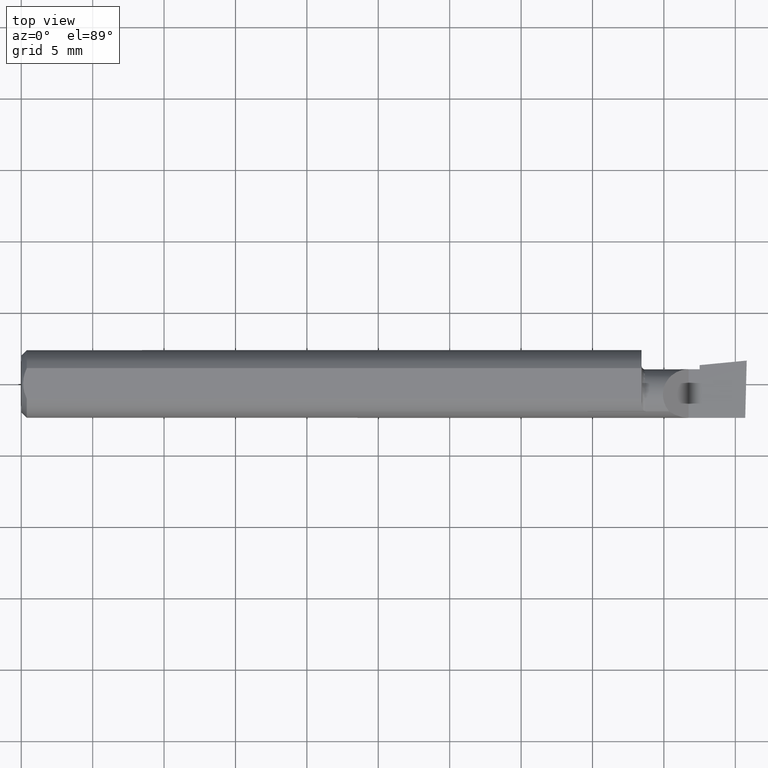
[diagram: clean part render]
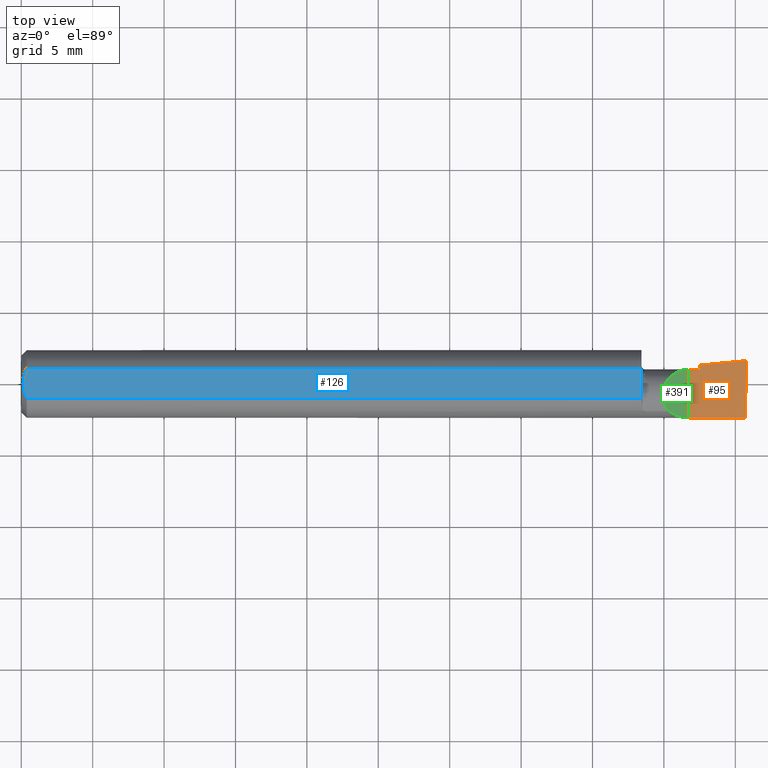
[diagram: same view with three faces highlighted in distinct colors, each labeled with its STEP entity id]
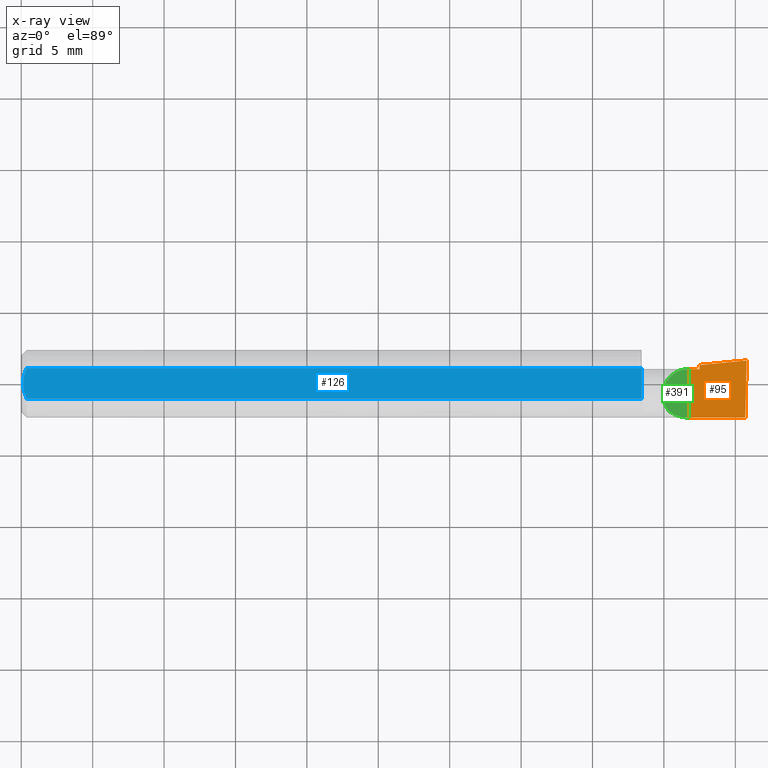
[diagram: x-ray of the same camera — body ghosted, the three highlighted faces saturated]
A machine part, top view with three faces highlighted in distinct colors.
The next image is the same camera in x-ray (body ghosted, the three faces saturated) — at least one of them is partly hidden behind the body in this view.
Their STEP definitions:

[orange] entity #95 — the highlighted planar face has unit normal (-0, 0, -1).
#10 = DIRECTION ( 'NONE',  ( 0.9953961983671787417, 0.09584575252022463354, -5.467869873542577569E-16 ) ) ;
#16 = DIRECTION ( 'NONE',  ( -0.000000000000000000, 1.000000000000000000, -0.000000000000000000 ) ) ;
#23 = VERTEX_POINT ( 'NONE', #432 ) ;
#58 = LINE ( 'NONE', #264, #364 ) ;
#70 = VECTOR ( 'NONE', #290, 39.37007874015748143 ) ;
#71 = VECTOR ( 'NONE', #16, 39.37007874015748143 ) ;
#86 = CARTESIAN_POINT ( 'NONE',  ( 1.995862624392068074, -0.09360000000000009979, -6.605666309584466665E-17 ) ) ;
#95 = ADVANCED_FACE ( 'NONE', ( #212 ), #406, .F. ) ;
#115 = ORIENTED_EDGE ( 'NONE', *, *, #279, .F. ) ;
#125 = CARTESIAN_POINT ( 'NONE',  ( 1.870000000000000107, -0.2500000000000000555, 3.114870918614344945E-18 ) ) ;
#130 = VERTEX_POINT ( 'NONE', #501 ) ;
#157 = EDGE_CURVE ( 'NONE', #23, #261, #493, .T. ) ;
#159 = LINE ( 'NONE', #258, #71 ) ;
#161 = ORIENTED_EDGE ( 'NONE', *, *, #167, .F. ) ;
#167 = EDGE_CURVE ( 'NONE', #416, #130, #259, .T. ) ;
#178 = CARTESIAN_POINT ( 'NONE',  ( 5.659797890829555466E-31, -0.09359999999999998876, 1.030335658007946046E-15 ) ) ;
#180 = ORIENTED_EDGE ( 'NONE', *, *, #516, .F. ) ;
#199 = VECTOR ( 'NONE', #426, 39.37007874015748143 ) ;
#212 = FACE_OUTER_BOUND ( 'NONE', #441, .T. ) ;
#238 = DIRECTION ( 'NONE',  ( -4.268512490100411279E-18, 1.000000000000000000, 2.344761903626518103E-33 ) ) ;
#254 = VECTOR ( 'NONE', #238, 39.37007874015748143 ) ;
#257 = CARTESIAN_POINT ( 'NONE',  ( 1.991772787678609324, -0.2497845628634190740, -6.377686106282058433E-17 ) ) ;
#258 = CARTESIAN_POINT ( 'NONE',  ( 1.840000000000000080, -0.2500000000000000555, 1.959434878635762025E-17 ) ) ;
#259 = LINE ( 'NONE', #125, #254 ) ;
#261 = VERTEX_POINT ( 'NONE', #86 ) ;
#263 = VERTEX_POINT ( 'NONE', #369 ) ;
#264 = CARTESIAN_POINT ( 'NONE',  ( 1.013387277386880170, -0.03060000000000022771, 4.736658843696218569E-16 ) ) ;
#279 = EDGE_CURVE ( 'NONE', #261, #555, #462, .T. ) ;
#290 = DIRECTION ( 'NONE',  ( 1.000000000000000000, 4.268512490100411279E-18, 0.000000000000000000 ) ) ;
#296 = ORIENTED_EDGE ( 'NONE', *, *, #348, .F. ) ;
#302 = DIRECTION ( 'NONE',  ( -1.000000000000000000, 0.000000000000000000, 5.493159289247764363E-16 ) ) ;
#338 = CARTESIAN_POINT ( 'NONE',  ( -3.030643867965641156E-19, 0.04039999999999997066, 1.030335658007946046E-15 ) ) ;
#340 = ORIENTED_EDGE ( 'NONE', *, *, #157, .F. ) ;
#341 = LINE ( 'NONE', #338, #70 ) ;
#342 = AXIS2_PLACEMENT_3D ( 'NONE', #593, #410, #302 ) ;
#348 = EDGE_CURVE ( 'NONE', #263, #416, #341, .T. ) ;
#364 = VECTOR ( 'NONE', #10, 39.37007874015748143 ) ;
#369 = CARTESIAN_POINT ( 'NONE',  ( 1.840000000000000080, 0.04039999999999989433, 1.959434878635762025E-17 ) ) ;
#406 = PLANE ( 'NONE',  #342 ) ;
#410 = DIRECTION ( 'NONE',  ( -5.493159289247764363E-16, 0.000000000000000000, -1.000000000000000000 ) ) ;
#416 = VERTEX_POINT ( 'NONE', #584 ) ;
#426 = DIRECTION ( 'NONE',  ( -1.000000000000000000, -0.000000000000000000, -0.000000000000000000 ) ) ;
#432 = CARTESIAN_POINT ( 'NONE',  ( 2.000000000000004441, 0.06440000000001339098, 4.265097680108330883E-14 ) ) ;
#441 = EDGE_LOOP ( 'NONE', ( #340, #180, #161, #296, #605, #115 ) ) ;
#449 = CARTESIAN_POINT ( 'NONE',  ( 1.840000000000000080, -0.09360000000000005815, 1.959434878635762025E-17 ) ) ;
#453 = DIRECTION ( 'NONE',  ( -0.02617694830786939167, -0.9996573249755573709, 1.459184416195897376E-17 ) ) ;
#462 = LINE ( 'NONE', #178, #199 ) ;
#493 = LINE ( 'NONE', #257, #590 ) ;
#501 = CARTESIAN_POINT ( 'NONE',  ( 1.870000000000000107, 0.05188242373432196131, 1.032980022604299511E-15 ) ) ;
#516 = EDGE_CURVE ( 'NONE', #130, #23, #58, .T. ) ;
#545 = EDGE_CURVE ( 'NONE', #555, #263, #159, .T. ) ;
#555 = VERTEX_POINT ( 'NONE', #449 ) ;
#584 = CARTESIAN_POINT ( 'NONE',  ( 1.870000000000000107, 0.04039999999999999841, 1.030335658007946243E-15 ) ) ;
#590 = VECTOR ( 'NONE', #453, 39.37007874015748143 ) ;
#593 = CARTESIAN_POINT ( 'NONE',  ( 2.000000000000000000, -0.2500000000000000555, -6.829619984160658046E-17 ) ) ;
#605 = ORIENTED_EDGE ( 'NONE', *, *, #545, .F. ) ;

[blue] entity #126 — the highlighted planar face has unit normal (0, -0, -1).
#7 = B_SPLINE_CURVE_WITH_KNOTS ( 'NONE', 3,
 ( #521, #332, #326, #80, #556, #554 ),
 .UNSPECIFIED., .F., .F.,
 ( 4, 2, 4 ),
 ( 0.005785415439423114564, 0.006333348270144337384, 0.006881281100865561072 ),
 .UNSPECIFIED. ) ;
#24 = CARTESIAN_POINT ( 'NONE',  ( 1.709999999999999964, 0.04209513035969836975, 0.08360000000000000764 ) ) ;
#49 = CARTESIAN_POINT ( 'NONE',  ( 0.005000000000000237761, 1.025183009042025117E-17, 0.08360000000000000764 ) ) ;
#53 = VECTOR ( 'NONE', #121, 39.37007874015748143 ) ;
#62 = ORIENTED_EDGE ( 'NONE', *, *, #414, .F. ) ;
#80 = CARTESIAN_POINT ( 'NONE',  ( 0.005975039161239527503, -0.01453776427033146371, 0.08359999999999996600 ) ) ;
#109 = CARTESIAN_POINT ( 'NONE',  ( 2.000000000000000000, 0.1436000000000000332, 0.08359999999999999376 ) ) ;
#116 = PLANE ( 'NONE',  #169 ) ;
#121 = DIRECTION ( 'NONE',  ( 1.000000000000000000, 0.000000000000000000, 0.000000000000000000 ) ) ;
#126 = ADVANCED_FACE ( 'NONE', ( #205 ), #116, .F. ) ;
#135 = VERTEX_POINT ( 'NONE', #24 ) ;
#148 = B_SPLINE_CURVE_WITH_KNOTS ( 'NONE', 3,
 ( #49, #250, #444, #297, #200, #396 ),
 .UNSPECIFIED., .F., .F.,
 ( 4, 2, 4 ),
 ( 0.006881281100865561072, 0.007427683811376461706, 0.007974086521887361473 ),
 .UNSPECIFIED. ) ;
#169 = AXIS2_PLACEMENT_3D ( 'NONE', #109, #316, #308 ) ;
#171 = EDGE_CURVE ( 'NONE', #197, #135, #329, .T. ) ;
#173 = CARTESIAN_POINT ( 'NONE',  ( 0.005000000000000237761, 1.025183009042025117E-17, 0.08360000000000000764 ) ) ;
#197 = VERTEX_POINT ( 'NONE', #423 ) ;
#200 = CARTESIAN_POINT ( 'NONE',  ( 0.01203648650249650870, 0.03550565407121124978, 0.08360000000000000764 ) ) ;
#205 = FACE_OUTER_BOUND ( 'NONE', #553, .T. ) ;
#213 = ORIENTED_EDGE ( 'NONE', *, *, #293, .F. ) ;
#224 = VERTEX_POINT ( 'NONE', #173 ) ;
#246 = LINE ( 'NONE', #537, #460 ) ;
#250 = CARTESIAN_POINT ( 'NONE',  ( 0.005000000000000227353, 0.007308422719211826561, 0.08360000000000000764 ) ) ;
#272 = ORIENTED_EDGE ( 'NONE', *, *, #171, .F. ) ;
#293 = EDGE_CURVE ( 'NONE', #328, #224, #7, .T. ) ;
#294 = CARTESIAN_POINT ( 'NONE',  ( 1.709999999999999964, -0.04209513035969836975, 0.08360000000000000764 ) ) ;
#297 = CARTESIAN_POINT ( 'NONE',  ( 0.009492654797564340635, 0.02859466010166628394, 0.08359999999999997988 ) ) ;
#308 = DIRECTION ( 'NONE',  ( 0.000000000000000000, 1.000000000000000000, -1.189000693621284344E-16 ) ) ;
#316 = DIRECTION ( 'NONE',  ( 0.000000000000000000, -1.189000693621284344E-16, -1.000000000000000000 ) ) ;
#326 = CARTESIAN_POINT ( 'NONE',  ( 0.009539353699420834165, -0.02875682547511369813, 0.08360000000000003539 ) ) ;
#328 = VERTEX_POINT ( 'NONE', #574 ) ;
#329 = LINE ( 'NONE', #379, #53 ) ;
#332 = CARTESIAN_POINT ( 'NONE',  ( 0.01206089165507027647, -0.03555991978469315307, 0.08360000000000003539 ) ) ;
#333 = ORIENTED_EDGE ( 'NONE', *, *, #337, .F. ) ;
#337 = EDGE_CURVE ( 'NONE', #135, #404, #246, .T. ) ;
#359 = CARTESIAN_POINT ( 'NONE',  ( 0.000000000000000000, -0.04209513035969835587, 0.08360000000000000764 ) ) ;
#379 = CARTESIAN_POINT ( 'NONE',  ( 0.000000000000000000, 0.04209513035969837669, 0.08360000000000000764 ) ) ;
#396 = CARTESIAN_POINT ( 'NONE',  ( 0.01499999999999999771, 0.04209513035969837669, 0.08360000000000000764 ) ) ;
#404 = VERTEX_POINT ( 'NONE', #294 ) ;
#405 = LINE ( 'NONE', #359, #471 ) ;
#414 = EDGE_CURVE ( 'NONE', #224, #197, #148, .T. ) ;
#423 = CARTESIAN_POINT ( 'NONE',  ( 0.01499999999999999771, 0.04209513035969837669, 0.08360000000000000764 ) ) ;
#443 = DIRECTION ( 'NONE',  ( 4.268512490100411279E-18, -1.000000000000000000, 1.189000693621284344E-16 ) ) ;
#444 = CARTESIAN_POINT ( 'NONE',  ( 0.005981829149300847866, 0.01454044632356568667, 0.08360000000000000764 ) ) ;
#446 = DIRECTION ( 'NONE',  ( -1.000000000000000000, -0.000000000000000000, -0.000000000000000000 ) ) ;
#451 = ORIENTED_EDGE ( 'NONE', *, *, #564, .F. ) ;
#460 = VECTOR ( 'NONE', #443, 39.37007874015748143 ) ;
#471 = VECTOR ( 'NONE', #446, 39.37007874015748143 ) ;
#521 = CARTESIAN_POINT ( 'NONE',  ( 0.01500000000000000291, -0.04209513035969835587, 0.08360000000000000764 ) ) ;
#537 = CARTESIAN_POINT ( 'NONE',  ( 1.709999999999999964, 0.1436000000000000332, 0.08359999999999999376 ) ) ;
#553 = EDGE_LOOP ( 'NONE', ( #333, #272, #62, #213, #451 ) ) ;
#554 = CARTESIAN_POINT ( 'NONE',  ( 0.005000000000000237761, 1.025183009042025117E-17, 0.08360000000000000764 ) ) ;
#556 = CARTESIAN_POINT ( 'NONE',  ( 0.005000000000000228220, -0.007328888879231051229, 0.08359999999999999376 ) ) ;
#564 = EDGE_CURVE ( 'NONE', #404, #328, #405, .T. ) ;
#574 = CARTESIAN_POINT ( 'NONE',  ( 0.01500000000000000291, -0.04209513035969835587, 0.08360000000000000764 ) ) ;

[green] entity #391 — the highlighted planar face has unit normal (-0.7071, 0, -0.7071).
#16 = DIRECTION ( 'NONE',  ( -0.000000000000000000, 1.000000000000000000, -0.000000000000000000 ) ) ;
#47 = PLANE ( 'NONE',  #434 ) ;
#50 = ORIENTED_EDGE ( 'NONE', *, *, #578, .F. ) ;
#52 = DIRECTION ( 'NONE',  ( -0.7071067811865516806, 0.000000000000000000, 0.7071067811865433539 ) ) ;
#63 = CARTESIAN_POINT ( 'NONE',  ( 1.770398118553869082, 0.04039999999999997760, 0.06960188144613024819 ) ) ;
#71 = VECTOR ( 'NONE', #16, 39.37007874015748143 ) ;
#96 =( BOUNDED_CURVE ( )  B_SPLINE_CURVE ( 3, ( #398, #214, #63, #102 ),
 .UNSPECIFIED., .F., .T. ) 
 B_SPLINE_CURVE_WITH_KNOTS ( ( 4, 4 ),
 ( 5.587886473277674071, 7.853981633974482790 ),
 .UNSPECIFIED. ) 
 CURVE ( )  GEOMETRIC_REPRESENTATION_ITEM ( )  RATIONAL_B_SPLINE_CURVE ( ( 1.000000000000000000, 0.6159343746860732605, 0.6159343746860732605, 1.000000000000000000 ) ) 
 REPRESENTATION_ITEM ( '' )  );
#102 = CARTESIAN_POINT ( 'NONE',  ( 1.840000000000000080, 0.04039999999999989433, 1.959434878635762025E-17 ) ) ;
#132 = CARTESIAN_POINT ( 'NONE',  ( 1.785481776797905207, -0.07608366013071816980, 0.05451822320209426254 ) ) ;
#141 = VERTEX_POINT ( 'NONE', #155 ) ;
#155 = CARTESIAN_POINT ( 'NONE',  ( 1.785481776797905207, -0.07608366013071816980, 0.05451822320209426254 ) ) ;
#159 = LINE ( 'NONE', #258, #71 ) ;
#203 = EDGE_LOOP ( 'NONE', ( #50, #607, #539 ) ) ;
#214 = CARTESIAN_POINT ( 'NONE',  ( 1.740893772288689023, -0.02263899945514331880, 0.09910622771130976616 ) ) ;
#216 = EDGE_CURVE ( 'NONE', #555, #141, #407, .T. ) ;
#235 = CARTESIAN_POINT ( 'NONE',  ( 1.840000000000000080, -0.09360000000000005815, 1.959434878635762025E-17 ) ) ;
#258 = CARTESIAN_POINT ( 'NONE',  ( 1.840000000000000080, -0.2500000000000000555, 1.959434878635762025E-17 ) ) ;
#263 = VERTEX_POINT ( 'NONE', #369 ) ;
#369 = CARTESIAN_POINT ( 'NONE',  ( 1.840000000000000080, 0.04039999999999989433, 1.959434878635762025E-17 ) ) ;
#391 = ADVANCED_FACE ( 'NONE', ( #527 ), #47, .F. ) ;
#398 = CARTESIAN_POINT ( 'NONE',  ( 1.785481776797905207, -0.07608366013071816980, 0.05451822320209426254 ) ) ;
#407 =( BOUNDED_CURVE ( )  B_SPLINE_CURVE ( 3, ( #235, #606, #609, #132 ),
 .UNSPECIFIED., .F., .T. ) 
 B_SPLINE_CURVE_WITH_KNOTS ( ( 4, 4 ),
 ( 4.712388980384689674, 5.334140324029831959 ),
 .UNSPECIFIED. ) 
 CURVE ( )  GEOMETRIC_REPRESENTATION_ITEM ( )  RATIONAL_B_SPLINE_CURVE ( ( 1.000000000000000000, 0.9680440490283178656, 0.9680440490283178656, 1.000000000000000000 ) ) 
 REPRESENTATION_ITEM ( '' )  );
#434 = AXIS2_PLACEMENT_3D ( 'NONE', #571, #582, #52 ) ;
#449 = CARTESIAN_POINT ( 'NONE',  ( 1.840000000000000080, -0.09360000000000005815, 1.959434878635762025E-17 ) ) ;
#527 = FACE_OUTER_BOUND ( 'NONE', #203, .T. ) ;
#539 = ORIENTED_EDGE ( 'NONE', *, *, #545, .T. ) ;
#545 = EDGE_CURVE ( 'NONE', #555, #263, #159, .T. ) ;
#555 = VERTEX_POINT ( 'NONE', #449 ) ;
#571 = CARTESIAN_POINT ( 'NONE',  ( 1.840000000000000080, -0.2500000000000000555, 1.959434878635762025E-17 ) ) ;
#578 = EDGE_CURVE ( 'NONE', #141, #263, #96, .T. ) ;
#582 = DIRECTION ( 'NONE',  ( -0.7071067811865433539, 0.000000000000000000, -0.7071067811865516806 ) ) ;
#606 = CARTESIAN_POINT ( 'NONE',  ( 1.820282210334660977, -0.09360000000000003040, 0.01971778966533903332 ) ) ;
#607 = ORIENTED_EDGE ( 'NONE', *, *, #216, .F. ) ;
#609 = CARTESIAN_POINT ( 'NONE',  ( 1.801509571749044802, -0.08756847698997997920, 0.03849042825095481957 ) ) ;